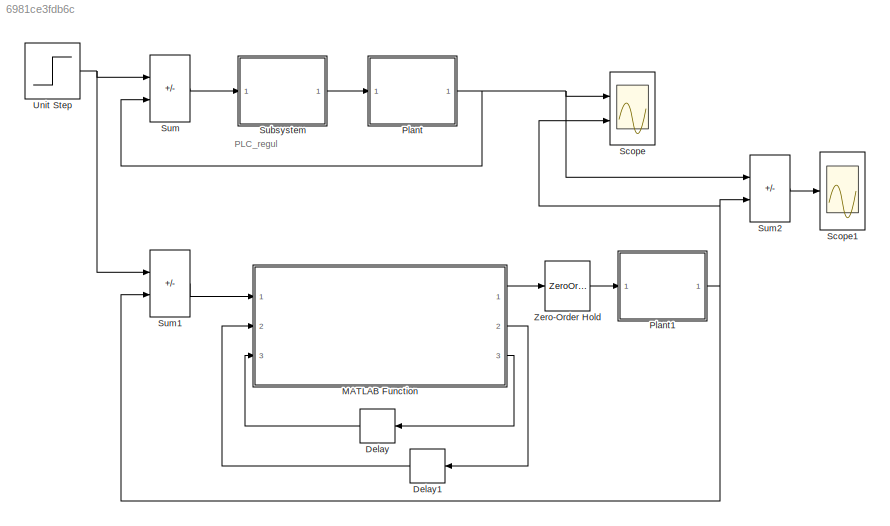
MODEL slx_6981ce3fdb6c
KIND model
CONFIG AbsTol = auto
CONFIG EnableMultiTasking = off
CONFIG FixedStep = 0.2
CONFIG MaxStep = auto
CONFIG MinStep = auto
CONFIG RelTol = 1e-3
CONFIG SampleTimeConstraint = Unconstrained
CONFIG SolverName = ode14x
CONFIG StartTime = 0.0
CONFIG StopTime = 10.0
BLOCK [Delay] Delay
  DelayLength = 1
  InputPortMap = u0
  Ports = [1, 1]
BLOCK [Delay] Delay1
  DelayLength = 1
  InputPortMap = u0
  Ports = [1, 1]
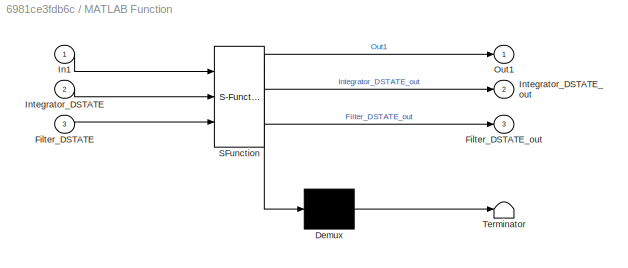
BLOCK [SubSystem] MATLAB Function
  ErrorFcn = Stateflow.Translate.translate
  PermitHierarchicalResolution = ExplicitOnly
  Ports = [3, 3]
  RequestExecContextInheritance = off
  SFBlockType = MATLAB Function
  TreatAsAtomicUnit = on
BLOCK [Demux] MATLAB Function/ Demux 
  Outputs = 1
  Ports = [1, 1]
BLOCK [S-Function] MATLAB Function/ SFunction 
  EnableBusSupport = on
  FunctionName = sf_sfun
  PortCounts = [3 4]
  Ports = [3, 4]
  SFcnIsStateOwnerBlock = off
  SFunctionDeploymentMode = off
  Tag = Stateflow S-Function 2
BLOCK [Terminator] MATLAB Function/ Terminator 
BLOCK [Inport] MATLAB Function/Filter_DSTATE
  Port = 3
BLOCK [Outport] MATLAB Function/Filter_DSTATE_out
  Port = 3
  VectorParamsAs1DForOutWhenUnconnected = off
BLOCK [Inport] MATLAB Function/In1
BLOCK [Inport] MATLAB Function/Integrator_DSTATE
  Port = 2
BLOCK [Outport] MATLAB Function/Integrator_DSTATE_out
  Port = 2
  VectorParamsAs1DForOutWhenUnconnected = off
BLOCK [Outport] MATLAB Function/Out1
  VectorParamsAs1DForOutWhenUnconnected = off
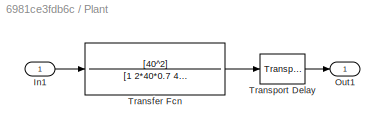
BLOCK [SubSystem] Plant
  Ports = [1, 1]
  RequestExecContextInheritance = off
BLOCK [Inport] Plant/In1
BLOCK [Outport] Plant/Out1
  VectorParamsAs1DForOutWhenUnconnected = off
BLOCK [TransferFcn] Plant/Transfer Fcn
  Denominator = [1 2*40*0.7 40^2]
  Numerator = [40^2]
BLOCK [TransportDelay] Plant/Transport Delay
  Ports = [1, 1]
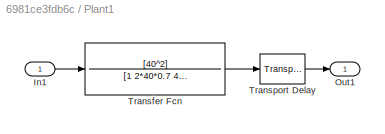
BLOCK [SubSystem] Plant1
  Ports = [1, 1]
  RequestExecContextInheritance = off
BLOCK [Inport] Plant1/In1
BLOCK [Outport] Plant1/Out1
  VectorParamsAs1DForOutWhenUnconnected = off
BLOCK [TransferFcn] Plant1/Transfer Fcn
  Denominator = [1 2*40*0.7 40^2]
  Numerator = [40^2]
BLOCK [TransportDelay] Plant1/Transport Delay
  Ports = [1, 1]
BLOCK [Scope] Scope
  Floating = off
  NumInputPorts = 2
  Ports = [2]
  ScopeSpecificationString = Simulink.scopes.TimeScopeBlockCfg('CurrentConfiguration', extmgr.ConfigurationSet(extmgr.Configuration('Core','General UI',true,'FigureColor',[1 1 1]),extmgr.Configuration('Core','Source UI',true),extmgr.Configuration('Sources','WiredSimulink',true,'DataLoggingSaveFormat','StructureWithTime','DataLoggingLimitDataPoints',true,'DataLoggingDecimation','1','DataLoggingDecimateData',true),extmgr.Config...<+1842ch>
BLOCK [Scope] Scope1
  Floating = off
  NumInputPorts = 1
  Ports = [1]
  ScopeSpecificationString = Simulink.scopes.TimeScopeBlockCfg('CurrentConfiguration', extmgr.ConfigurationSet(extmgr.Configuration('Core','General UI',true,'FigureColor',[1 1 1]),extmgr.Configuration('Core','Source UI',true),extmgr.Configuration('Sources','WiredSimulink',true,'DataLoggingVariableName','ScopeData1'),extmgr.Configuration('Visuals','Time Domain',true,'SerializedDisplays',{struct('MinYLimReal','-0.20221','MaxYLi...<+1565ch>
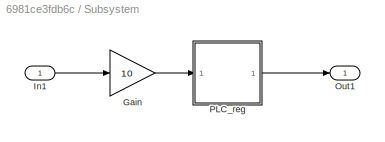
BLOCK [SubSystem] Subsystem
  Ports = [1, 1]
  RequestExecContextInheritance = off
BLOCK [Gain] Subsystem/Gain
  Gain = 10
BLOCK [Inport] Subsystem/In1
BLOCK [Outport] Subsystem/Out1
  VectorParamsAs1DForOutWhenUnconnected = off
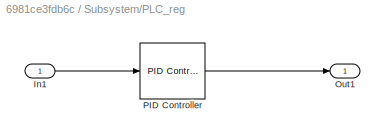
BLOCK [SubSystem] Subsystem/PLC_reg
  Ports = [1, 1]
  RequestExecContextInheritance = off
BLOCK [Inport] Subsystem/PLC_reg/In1
BLOCK [Outport] Subsystem/PLC_reg/Out1
  VectorParamsAs1DForOutWhenUnconnected = off
BLOCK [Reference] Subsystem/PLC_reg/PID Controller  REF=slpidlib/PID Controller
  Ports = [1, 1]
  SourceBlock = slpidlib/PID Controller
  SourceProductBaseCode = SL
  SourceType = PID 1dof
BLOCK [Sum] Sum
  IconShape = rectangular
  InputSameDT = on
  Inputs = +-
  OutDataTypeStr = Inherit: Same as first input
  Ports = [2, 1]
  SaturateOnIntegerOverflow = on
BLOCK [Sum] Sum1
  IconShape = rectangular
  InputSameDT = on
  Inputs = +-
  OutDataTypeStr = Inherit: Same as first input
  Ports = [2, 1]
  SaturateOnIntegerOverflow = on
BLOCK [Sum] Sum2
  IconShape = rectangular
  InputSameDT = on
  Inputs = +-
  OutDataTypeStr = Inherit: Same as first input
  Ports = [2, 1]
  SaturateOnIntegerOverflow = on
BLOCK [Step] Unit Step
  SampleTime = 0
  Time = 0
BLOCK [ZeroOrderHold] Zero-Order Hold
  SampleTime = 0.2
ANNOTATION (root): PLC_regul
LINE Delay1:1 -> MATLAB Function:2
LINE Delay:1 -> MATLAB Function:3
LINE MATLAB Function:1 -> Zero-Order Hold:1
LINE MATLAB Function:2 -> Delay1:1
LINE MATLAB Function:3 -> Delay:1
LINE Plant/In1:1 -> Plant/Transfer Fcn:1
LINE Plant/Transfer Fcn:1 -> Plant/Transport Delay:1
LINE Plant/Transport Delay:1 -> Plant/Out1:1
LINE Plant1/In1:1 -> Plant1/Transfer Fcn:1
LINE Plant1/Transfer Fcn:1 -> Plant1/Transport Delay:1
LINE Plant1/Transport Delay:1 -> Plant1/Out1:1
NET Plant1:1 -> Scope:2, Sum1:2, Sum2:2
NET Plant:1 -> Scope:1, Sum2:1, Sum:2
LINE Subsystem/Gain:1 -> Subsystem/PLC_reg:1
LINE Subsystem/In1:1 -> Subsystem/Gain:1
LINE Subsystem/PLC_reg/In1:1 -> Subsystem/PLC_reg/PID Controller:1
LINE Subsystem/PLC_reg/PID Controller:1 -> Subsystem/PLC_reg/Out1:1
LINE Subsystem/PLC_reg:1 -> Subsystem/Out1:1
LINE Subsystem:1 -> Plant:1
LINE Sum1:1 -> MATLAB Function:1
LINE Sum2:1 -> Scope1:1
LINE Sum:1 -> Subsystem:1
NET Unit Step:1 -> Sum1:1, Sum:1
LINE Zero-Order Hold:1 -> Plant1:1
note: NET lines group one-source signal fan-out (src -> all destinations, sorted); 1:1 wires keep LINE
CHART MATLAB Function states=1 transitions=1
  STATE_LABEL 'eML_blk_kernel()'
  STATE_LABEL 'SCRIPT:\nfunction [Out1, Integrator_DSTATE_out, Filter_DSTATE_out]...\n    =fcn_PID(In1, Integrator_DSTATE, Filter_DSTATE)\nrtb_Gain = 10.0 * In1;\nrtb_FilterCoefficient = (0.0 - Filter_DSTATE) * 100.0;\nOut1 = ((0.004333 * rtb_Gain) + Integrator_DSTATE) + rtb_FilterCoefficient;\nFilter_DSTATE_out = (0.2 * rtb_FilterCoefficient) + Filter_DSTATE;\nIntegrator_DSTATE_out = ((0.04333 * rtb_Gain) * 0.2) + Int...<+19ch>'
CHART  states=0 transitions=0
